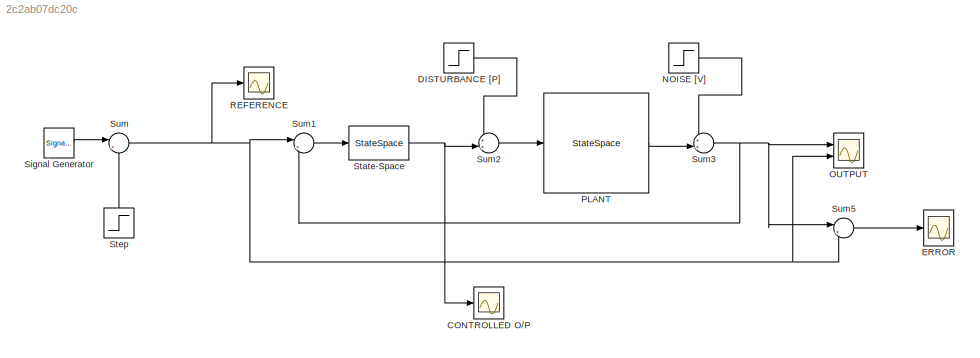
MODEL slx_2c2ab07dc20c
KIND model
CONFIG AbsTol = auto
CONFIG EnableMultiTasking = off
CONFIG FixedStep = auto
CONFIG MaxStep = 1e-4
CONFIG MinStep = auto
CONFIG RelTol = 1e-3
CONFIG SampleTimeConstraint = Unconstrained
CONFIG SolverName = VariableStepAuto
CONFIG StartTime = 0.0
CONFIG StopTime = 10.0
BLOCK [Scope] CONTROLLED O//P
  Floating = off
  NumInputPorts = 1
  Ports = [1]
  ScopeSpecificationString = Simulink.scopes.TimeScopeBlockCfg('CurrentConfiguration', extmgr.ConfigurationSet(extmgr.Configuration('Core','General UI',true),extmgr.Configuration('Core','Source UI',true),extmgr.Configuration('Sources','WiredSimulink',true,'DataLoggingVariableName','ScopeData3'),extmgr.Configuration('Visuals','Time Domain',true,'SerializedDisplays',{struct('MinYLimReal','-24430989446.93066','MaxYLimReal','1368...<+1493ch>
BLOCK [Step] DISTURBANCE [P]
  After = 0
  SampleTime = 0
  Time = 0
BLOCK [Scope] ERROR
  Floating = off
  NumInputPorts = 1
  Ports = [1]
  ScopeSpecificationString = Simulink.scopes.TimeScopeBlockCfg('CurrentConfiguration', extmgr.ConfigurationSet(extmgr.Configuration('Core','General UI',true),extmgr.Configuration('Core','Source UI',true),extmgr.Configuration('Sources','WiredSimulink',true,'DataLoggingVariableName','ScopeData1'),extmgr.Configuration('Visuals','Time Domain',true,'SerializedDisplays',{struct('MinYLimReal','-3.00000','MaxYLimReal','-1.00000','YLa...<+1403ch>
BLOCK [Step] NOISE [V]
  After = 0
  SampleTime = 0
  Time = 0
BLOCK [Scope] OUTPUT
  Floating = off
  NumInputPorts = 2
  Ports = [2]
  ScopeSpecificationString = Simulink.scopes.TimeScopeBlockCfg('CurrentConfiguration', extmgr.ConfigurationSet(extmgr.Configuration('Core','General UI',true),extmgr.Configuration('Core','Source UI',true),extmgr.Configuration('Sources','WiredSimulink',true),extmgr.Configuration('Visuals','Time Domain',true,'SerializedDisplays',{struct('MinYLimReal','-0.25','MaxYLimReal','2.25','YLabelReal','','MinYLimMag','0.00000','MaxYLimMag...<+1421ch>
BLOCK [StateSpace] PLANT
  A = Aa_m
  AllowTunableDMatrix = on
  B = Bb_m
  C = Cc_m
  D = Dd_m
  InitialCondition = 0
  Ports = [1, 1]
BLOCK [Scope] REFERENCE
  Floating = off
  NumInputPorts = 1
  Ports = [1]
  ScopeSpecificationString = Simulink.scopes.TimeScopeBlockCfg('CurrentConfiguration', extmgr.ConfigurationSet(extmgr.Configuration('Core','General UI',true),extmgr.Configuration('Core','Source UI',true),extmgr.Configuration('Sources','WiredSimulink',true,'DataLoggingVariableName','ScopeData2'),extmgr.Configuration('Visuals','Time Domain',true,'SerializedDisplays',{struct('MinYLimReal','1.00000','MaxYLimReal','3.00000','YLabe...<+1433ch>
BLOCK [SignalGenerator] Signal Generator
  Amplitude = 0.0000000000002
  Frequency = 0.000000000010
  Ports = [0, 1]
  Units = rad/sec
BLOCK [StateSpace] State-Space
  A = Aaa_m
  AllowTunableDMatrix = on
  B = Bbb_m
  C = Ccc_m
  D = Ddd_m
  InitialCondition = 0
  Ports = [1, 1]
BLOCK [Step] Step
  After = 2
  NameLocation = right
  SampleTime = 0
  Time = 0
BLOCK [Sum] Sum
  Inputs = |++
  Ports = [2, 1]
BLOCK [Sum] Sum1
  Inputs = |+-
  Ports = [2, 1]
BLOCK [Sum] Sum2
  Inputs = ++|
  Ports = [2, 1]
BLOCK [Sum] Sum3
  Inputs = ++|
  Ports = [2, 1]
BLOCK [Sum] Sum5
  Inputs = |+-
  Ports = [2, 1]
LINE DISTURBANCE [P]:1 -> Sum2:1
LINE NOISE [V]:1 -> Sum3:1
LINE PLANT:1 -> Sum3:2
LINE Signal Generator:1 -> Sum:1
NET State-Space:1 -> CONTROLLED O//P:1, Sum2:2
LINE Step:1 -> Sum:2
LINE Sum1:1 -> State-Space:1
LINE Sum2:1 -> PLANT:1
NET Sum3:1 -> OUTPUT:1, Sum1:2, Sum5:1
LINE Sum5:1 -> ERROR:1
NET Sum:1 -> OUTPUT:2, REFERENCE:1, Sum1:1, Sum5:2
note: NET lines group one-source signal fan-out (src -> all destinations, sorted); 1:1 wires keep LINE
